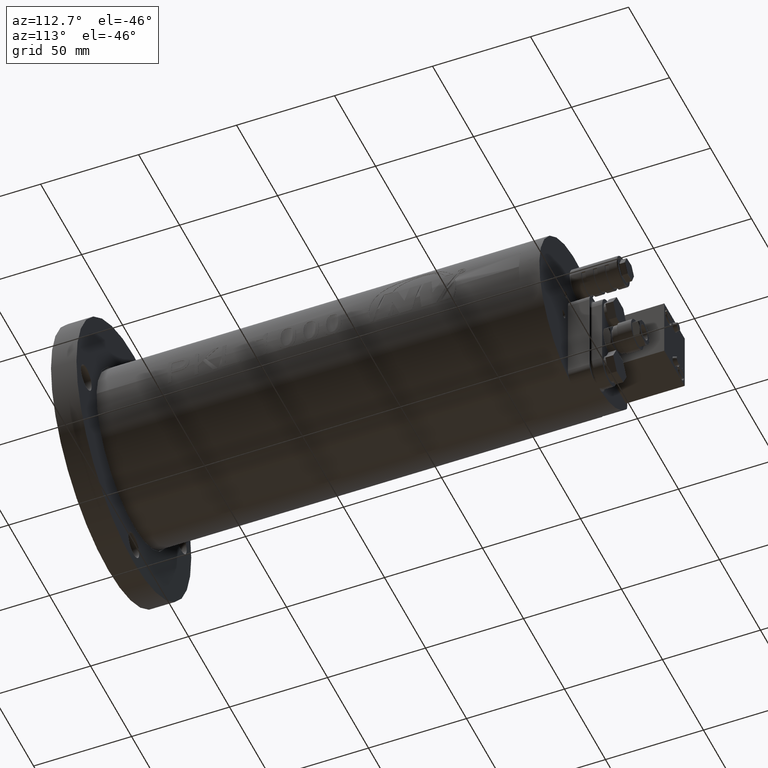
[diagram: clean part render]
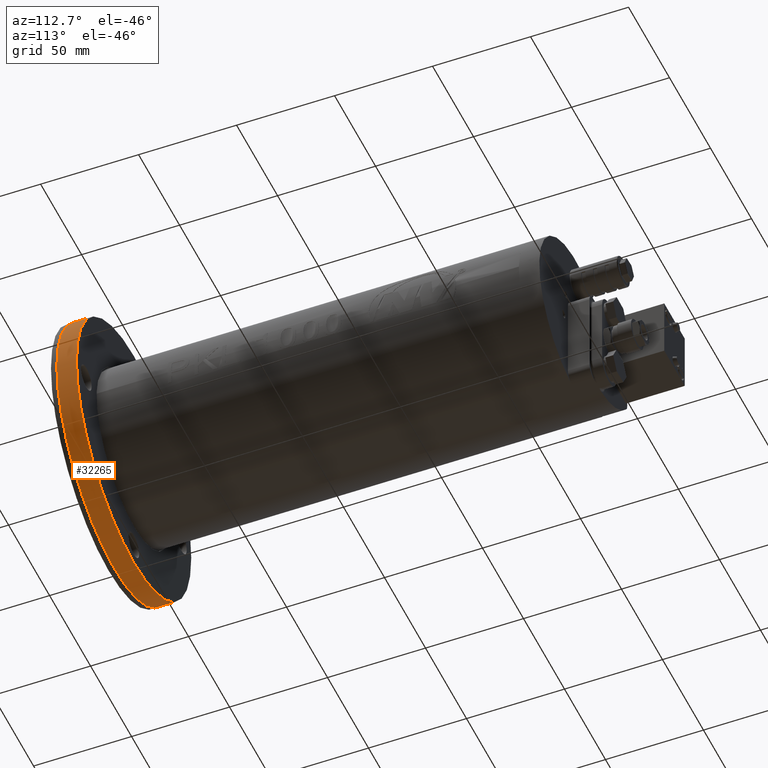
[diagram: same view with one face highlighted and labeled with its STEP entity id]
A machine part, auxiliary view. The second image highlights one B-rep face of the part: STEP entity #32265.
In plain terms, the highlighted cylindrical surface (partial cylindrical patch) has radius 70 mm, axis along (-0, -1, 0).
Its self-contained STEP definition (entity closure, byte-faithful):
#1 = CIRCLE ( 'NONE', #6617, 70.00000000000001400 ) ;
#2297 = AXIS2_PLACEMENT_3D ( 'NONE', #27055, #33979, #20889 ) ;
#2976 = CARTESIAN_POINT ( 'NONE',  ( 49.49747468305922400, -7.000000000000031100, 49.49747468305796600 ) ) ;
#3452 = CYLINDRICAL_SURFACE ( 'NONE', #3582, 70.00000000000001400 ) ;
#3582 = AXIS2_PLACEMENT_3D ( 'NONE', #21189, #10948, #8198 ) ;
#4710 = VERTEX_POINT ( 'NONE', #16463 ) ;
#6592 = CARTESIAN_POINT ( 'NONE',  ( 49.49747468305921700, -21.78350515463921500, 49.49747468305796600 ) ) ;
#6617 = AXIS2_PLACEMENT_3D ( 'NONE', #34572, #14525, #27335 ) ;
#8198 = DIRECTION ( 'NONE',  ( 0.7071067811865527900, -2.973811673103097200E-016, 0.7071067811865422400 ) ) ;
#9716 = CARTESIAN_POINT ( 'NONE',  ( -49.49747468305819400, -6.999999999999991100, -49.49747468305795900 ) ) ;
#10452 = LINE ( 'NONE', #6592, #15071 ) ;
#10890 = LINE ( 'NONE', #13939, #27349 ) ;
#10948 = DIRECTION ( 'NONE',  ( -4.382831749361561200E-016, -1.000000000000000000, 4.037036577267773700E-017 ) ) ;
#12165 = VERTEX_POINT ( 'NONE', #9716 ) ;
#13939 = CARTESIAN_POINT ( 'NONE',  ( -49.49747468305820100, -21.78350515463917600, -49.49747468305795900 ) ) ;
#14525 = DIRECTION ( 'NONE',  ( -4.382831749361561200E-016, -1.000000000000000000, 4.037036577267773700E-017 ) ) ;
#15071 = VECTOR ( 'NONE', #33104, 1000.000000000000000 ) ;
#16463 = CARTESIAN_POINT ( 'NONE',  ( -49.49747468305819400, -16.99999999999998900, -49.49747468305795900 ) ) ;
#16861 = EDGE_LOOP ( 'NONE', ( #24347, #32437, #20840, #33612 ) ) ;
#18691 = EDGE_CURVE ( 'NONE', #4710, #36448, #1, .T. ) ;
#19001 = EDGE_CURVE ( 'NONE', #29501, #36448, #10452, .T. ) ;
#20840 = ORIENTED_EDGE ( 'NONE', *, *, #19001, .T. ) ;
#20889 = DIRECTION ( 'NONE',  ( 0.7071067811865527900, -2.849902853390468200E-016, 0.7071067811865422400 ) ) ;
#21189 = CARTESIAN_POINT ( 'NONE',  ( 5.119386305137626600E-013, -21.78350515463919400, -2.212893506100934000E-028 ) ) ;
#22033 = FACE_OUTER_BOUND ( 'NONE', #16861, .T. ) ;
#22279 = EDGE_CURVE ( 'NONE', #12165, #29501, #28362, .T. ) ;
#24347 = ORIENTED_EDGE ( 'NONE', *, *, #41617, .F. ) ;
#27055 = CARTESIAN_POINT ( 'NONE',  ( 5.184179920896229100E-013, -7.000000000000011500, -5.968155104952719400E-016 ) ) ;
#27335 = DIRECTION ( 'NONE',  ( 0.7071067811865527900, -2.973811673103097200E-016, 0.7071067811865422400 ) ) ;
#27349 = VECTOR ( 'NONE', #30521, 1000.000000000000000 ) ;
#28362 = CIRCLE ( 'NONE', #2297, 70.00000000000001400 ) ;
#29501 = VERTEX_POINT ( 'NONE', #2976 ) ;
#30521 = DIRECTION ( 'NONE',  ( -4.382831749361561200E-016, -1.000000000000000000, 4.037036577267773700E-017 ) ) ;
#32182 = CARTESIAN_POINT ( 'NONE',  ( 49.49747468305921700, -17.00000000000003200, 49.49747468305796600 ) ) ;
#32265 = ADVANCED_FACE ( 'NONE', ( #22033 ), #3452, .T. ) ;
#32437 = ORIENTED_EDGE ( 'NONE', *, *, #22279, .T. ) ;
#33104 = DIRECTION ( 'NONE',  ( -4.382831749361561200E-016, -1.000000000000000000, 4.037036577267773700E-017 ) ) ;
#33612 = ORIENTED_EDGE ( 'NONE', *, *, #18691, .F. ) ;
#33979 = DIRECTION ( 'NONE',  ( -4.382831749361561200E-016, -1.000000000000000000, 4.037036577267773700E-017 ) ) ;
#34572 = CARTESIAN_POINT ( 'NONE',  ( 5.140351603402614400E-013, -17.00000000000001100, -1.931118527684945100E-016 ) ) ;
#36448 = VERTEX_POINT ( 'NONE', #32182 ) ;
#41617 = EDGE_CURVE ( 'NONE', #12165, #4710, #10890, .T. ) ;